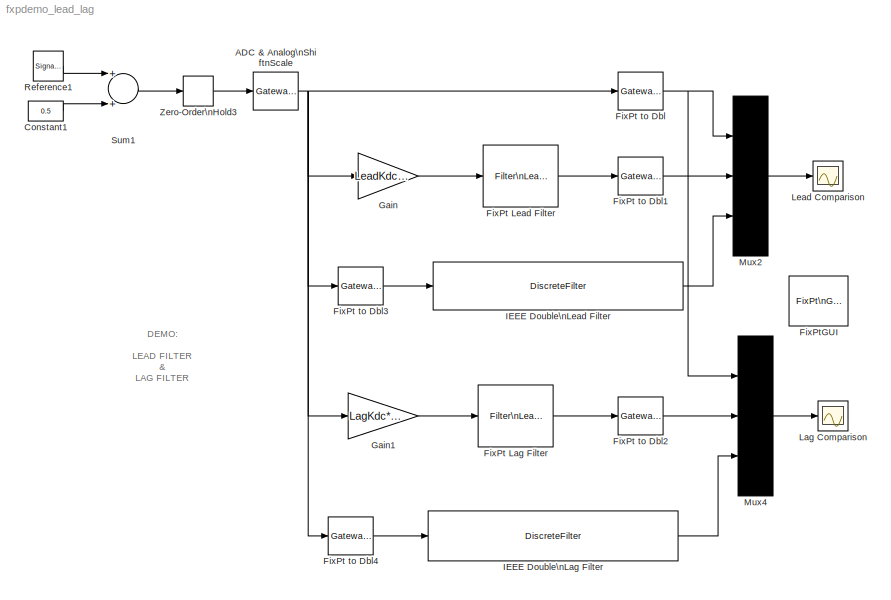
MODEL fxpdemo_lead_lag
KIND model
CONFIG AbsTol = 1e-6
CONFIG FixedStep = SampleTime
CONFIG MaxStep = auto
CONFIG MinStep = auto
CONFIG PreLoadFcn = preload_lead_lag
CONFIG RelTol = 1e-3
CONFIG Solver = FixedStepDiscrete
CONFIG SolverMode = SingleTasking
CONFIG StartTime = 0.0
CONFIG StopTime = 7.95
BLOCK [Reference] ADC & Analog\nShiftnScale  REF=fixpt_lib_4/Data Type/Gateway In  (lib defined in mdl_ef9dacb0d1df)
  DoSatur = on
  InRealWorld = Real World Value
  LockScale = off
  OutDataType = sfix(8)
  OutScaling = 2^(-4)
  OutputDataTypeScalingMode = Specify via dialog
  Ports = [1, 1]
  RndMeth = Nearest
  SourceBlock = fixpt_lib_4/Data Type/Gateway In
  SourceType = Fixed-Point Gateway In
BLOCK [Constant] Constant1
  Value = 0.5
BLOCK [Reference] FixPt Lag Filter  REF=fixpt_lib_4/Filters/Filter\nLead or Lag  (lib defined in mdl_ef9dacb0d1df)
  DoSatur = off
  ICPrevInput = 0.0
  ICPrevOutput = 0.0
  PoleZ = PoleZ
  Ports = [1, 1]
  RndMeth = Floor
  SourceBlock = fixpt_lib_4/Filters/Filter\nLead or Lag
  SourceType = Fixed-Point Filter Lead or Lag
  ZeroZ = LagZeroZ
BLOCK [Reference] FixPt Lead Filter  REF=fixpt_lib_4/Filters/Filter\nLead or Lag  (lib defined in mdl_ef9dacb0d1df)
  DoSatur = off
  ICPrevInput = 0.0
  ICPrevOutput = 0.0
  PoleZ = PoleZ
  Ports = [1, 1]
  RndMeth = Floor
  SourceBlock = fixpt_lib_4/Filters/Filter\nLead or Lag
  SourceType = Fixed-Point Filter Lead or Lag
  ZeroZ = LeadZeroZ
BLOCK [Reference] FixPt to Dbl  REF=fixpt_lib_4/Data Type/Gateway Out  (lib defined in mdl_ef9dacb0d1df)
  DoSatur = off
  OutBuiltInType = double
  OutRealWorld = Real World Value
  Ports = [1, 1]
  RndMeth = Floor
  SourceBlock = fixpt_lib_4/Data Type/Gateway Out
  SourceType = Fixed-Point Gateway Out
BLOCK [Reference] FixPt to Dbl1  REF=fixpt_lib_4/Data Type/Gateway Out  (lib defined in mdl_ef9dacb0d1df)
  DoSatur = off
  OutBuiltInType = double
  OutRealWorld = Real World Value
  Ports = [1, 1]
  RndMeth = Floor
  SourceBlock = fixpt_lib_4/Data Type/Gateway Out
  SourceType = Fixed-Point Gateway Out
BLOCK [Reference] FixPt to Dbl2  REF=fixpt_lib_4/Data Type/Gateway Out  (lib defined in mdl_ef9dacb0d1df)
  DoSatur = off
  OutBuiltInType = double
  OutRealWorld = Real World Value
  Ports = [1, 1]
  RndMeth = Floor
  SourceBlock = fixpt_lib_4/Data Type/Gateway Out
  SourceType = Fixed-Point Gateway Out
BLOCK [Reference] FixPt to Dbl3  REF=fixpt_lib_4/Data Type/Gateway Out  (lib defined in mdl_ef9dacb0d1df)
  DoSatur = off
  OutBuiltInType = double
  OutRealWorld = Real World Value
  Ports = [1, 1]
  RndMeth = Floor
  SourceBlock = fixpt_lib_4/Data Type/Gateway Out
  SourceType = Fixed-Point Gateway Out
BLOCK [Reference] FixPt to Dbl4  REF=fixpt_lib_4/Data Type/Gateway Out  (lib defined in mdl_ef9dacb0d1df)
  DoSatur = off
  OutBuiltInType = double
  OutRealWorld = Real World Value
  Ports = [1, 1]
  RndMeth = Floor
  SourceBlock = fixpt_lib_4/Data Type/Gateway Out
  SourceType = Fixed-Point Gateway Out
BLOCK [Reference] FixPtGUI  REF=fixpt_lib_3p1/FixPt\nGUI
  Ports = []
  SourceBlock = fixpt_lib_3p1/FixPt\nGUI
  SourceType = Fixed-Point GUI
BLOCK [Gain] Gain
  Gain = LeadKdc*(1-PoleZ)/(1-LeadZeroZ)
  OutDataTypeMode = Inherit via internal rule
  OutScaling = 2^-10
  ParameterDataType = sfix( 16 )
  ParameterDataTypeMode = Inherit via internal rule
  ParameterScaling = 2^-14
  ParameterScalingMode = Best Precision: Column-wise
  SaturateOnIntegerOverflow = off
  ShowAdditionalParam = on
BLOCK [Gain] Gain1
  Gain = LagKdc*(1-PoleZ)/(1-LagZeroZ)
  OutDataTypeMode = Inherit via internal rule
  OutScaling = 2^-10
  ParameterDataType = sfix( 16 )
  ParameterDataTypeMode = Inherit via internal rule
  ParameterScaling = 2^-14
  ParameterScalingMode = Best Precision: Column-wise
  SaturateOnIntegerOverflow = off
  ShowAdditionalParam = on
BLOCK [DiscreteFilter] IEEE Double\nLag Filter
  Denominator = [1 -PoleZ]
  Numerator = LagKdc*(1-PoleZ)/(1-LagZeroZ)*[1 -LagZeroZ]
  SampleTime = SampleTime
BLOCK [DiscreteFilter] IEEE Double\nLead Filter
  Denominator = [1 -PoleZ]
  Numerator = LeadKdc*(1-PoleZ)/(1-LeadZeroZ)*[1 -LeadZeroZ]
  SampleTime = SampleTime
BLOCK [Scope] Lag Comparison
  DataFormat = StructureWithTime
  NumInputPorts = 1
  Ports = [1]
  SaveName = LagCompare
  SaveToWorkspace = on
  TickLabels = on
  YMax = 4
  YMin = -3
BLOCK [Scope] Lead Comparison
  DataFormat = StructureWithTime
  NumInputPorts = 1
  Ports = [1]
  SaveName = LeadCompare
  SaveToWorkspace = on
  TickLabels = on
  TimeRange = 8
  YMax = 3
  YMin = -3
BLOCK [Mux] Mux2
  Inputs = 3
  Ports = [3, 1]
BLOCK [Mux] Mux4
  Inputs = 3
  Ports = [3, 1]
BLOCK [SignalGenerator] Reference1
  Amplitude = -1.5
  Frequency = 1/8
  WaveForm = square
BLOCK [Sum] Sum1
  Inputs = 2
  Ports = [2, 1]
BLOCK [ZeroOrderHold] Zero-Order\nHold3
  SampleTime = SampleTime
ANNOTATION (root): DEMO:\n\nLEAD FILTER\n&\nLAG FILTER\n\nFixed-Point Realization\nverses\nFloating-Point Realization
NET ADC & Analog\nShiftnScale:1 -> FixPt to Dbl3:1, FixPt to Dbl4:1, FixPt to Dbl:1, Gain1:1, Gain:1
LINE Constant1:1 -> Sum1:2
LINE FixPt Lag Filter:1 -> FixPt to Dbl2:1
LINE FixPt Lead Filter:1 -> FixPt to Dbl1:1
LINE FixPt to Dbl1:1 -> Mux2:2
LINE FixPt to Dbl2:1 -> Mux4:2
LINE FixPt to Dbl3:1 -> IEEE Double\nLead Filter:1
LINE FixPt to Dbl4:1 -> IEEE Double\nLag Filter:1
NET FixPt to Dbl:1 -> Mux2:1, Mux4:1
LINE Gain1:1 -> FixPt Lag Filter:1
LINE Gain:1 -> FixPt Lead Filter:1
LINE IEEE Double\nLag Filter:1 -> Mux4:3
LINE IEEE Double\nLead Filter:1 -> Mux2:3
LINE Mux2:1 -> Lead Comparison:1
LINE Mux4:1 -> Lag Comparison:1
LINE Reference1:1 -> Sum1:1
LINE Sum1:1 -> Zero-Order\nHold3:1
LINE Zero-Order\nHold3:1 -> ADC & Analog\nShiftnScale:1
note: NET lines group one-source signal fan-out (src -> all destinations, sorted); 1:1 wires keep LINE
